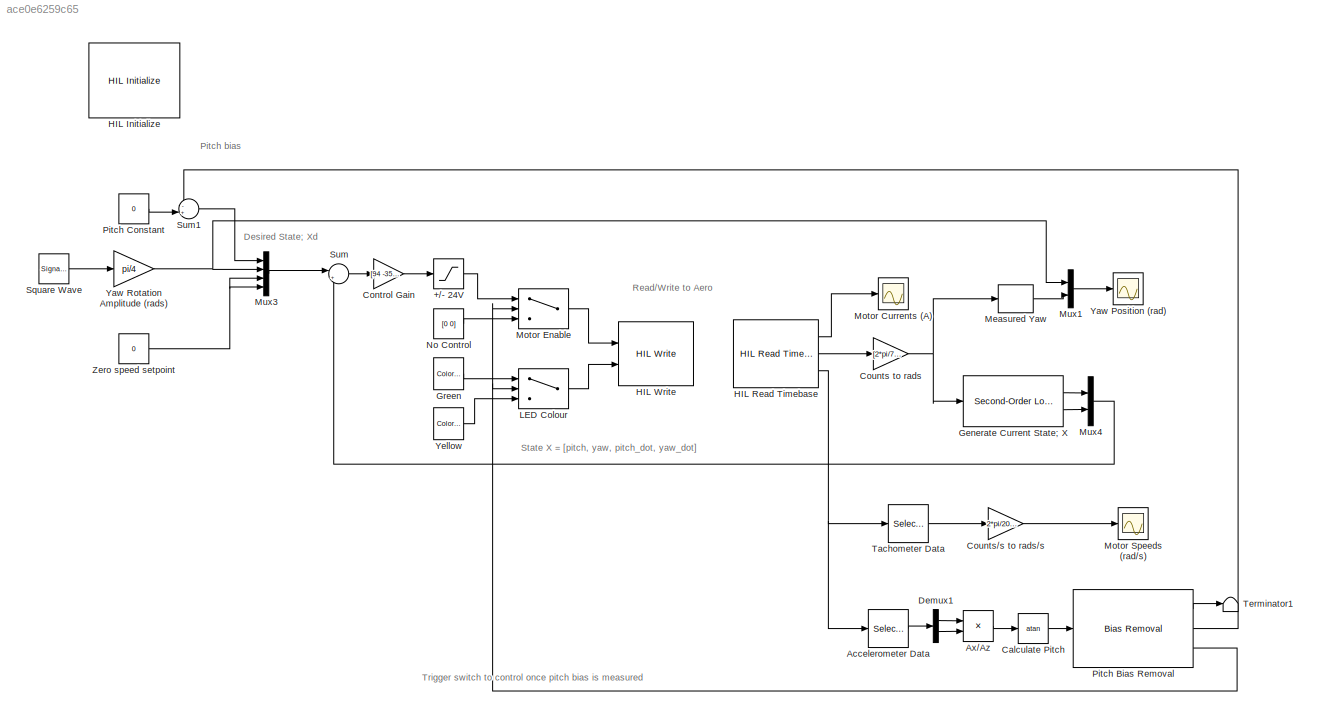
MODEL slx_ace0e6259c65
KIND model
CONFIG AbsTol = auto
CONFIG EnableMultiTasking = off
CONFIG FixedStep = 0.002
CONFIG MaxStep = auto
CONFIG MinStep = auto
CONFIG RelTol = 1e-3
CONFIG SampleTimeConstraint = Unconstrained
CONFIG SolverName = ode1
CONFIG StartTime = 0.0
CONFIG StopTime = inf
BLOCK [Saturate] +//- 24V
  LowerLimit = -24
  UpperLimit = 24
BLOCK [Selector] Accelerometer Data
  IndexOptions = Index vector (dialog)
  Indices = [1 2]
  InputPortWidth = 4
  OutputSizes = 1
  Ports = [1, 1]
BLOCK [Product] Ax//Az
  Inputs = */
  Ports = [2, 1]
BLOCK [Trigonometry] Calculate Pitch
  Operator = atan
  Ports = [1, 1]
BLOCK [Gain] Control Gain
  Gain = [94 -35 75 -25; 40 80 30 55]
  Multiplication = Matrix(K*u)
BLOCK [Gain] Counts to rads
  Gain = [2*pi/720/4 2*pi/1024/4]
BLOCK [Gain] Counts//s to rads//s
  Gain = 2*pi/2048
BLOCK [Demux] Demux1
  Outputs = 2
  Ports = [1, 2]
BLOCK [Reference] Generate Current State; X  REF=quarc_library/Continuous/Second-Order
Low-Pass Filter
  Ports = [1, 2]
  SourceBlock = quarc_library/Continuous/Second-Order\nLow-Pass Filter
  SourceProductName = QUARC Targets
  SourceType = Second-Order Low-Pass Filter
BLOCK [Reference] Green  REF=quarc_library/Sources/Signals/Color Constant
  Ports = [0, 1]
  SourceBlock = quarc_library/Sources/Signals/Color Constant
  SourceProductName = QUARC Targets
  SourceType = Color Constant
BLOCK [Reference] HIL Initialize  REF=quarc_library/Data Acquisition/Generic/Configuration/HIL Initialize
  AttributesFormatString = %<object_name> (%<board_type>-%<board_number>)
  Ports = []
  Priority = -99
  SourceBlock = quarc_library/Data Acquisition/Generic/Configuration/HIL Initialize
  SourceProductName = QUARC Targets
  SourceType = HIL Initialize
  UserDataPersistent = on
BLOCK [Reference] HIL Read Timebase  REF=quarc_library/Data Acquisition/Generic/Timebases/HIL Read
Timebase
  AttributesFormatString = (%<object_name>)
  Ports = [0, 3]
  SourceBlock = quarc_library/Data Acquisition/Generic/Timebases/HIL Read\nTimebase
  SourceProductName = QUARC Targets
  SourceType = HIL Read Timebase
  UserDataPersistent = on
BLOCK [Reference] HIL Write  REF=quarc_library/Data Acquisition/Generic/Immediate I//O/HIL Write
  AttributesFormatString = (%<object_name>)
  Ports = [2]
  SourceBlock = quarc_library/Data Acquisition/Generic/Immediate I//O/HIL Write
  SourceProductName = QUARC Targets
  SourceType = HIL Write
  UserDataPersistent = on
BLOCK [Switch] LED Colour
  Criteria = u2 > Threshold
  InputSameDT = off
  SaturateOnIntegerOverflow = off
BLOCK [Selector] Measured Yaw
  IndexOptions = Index vector (dialog)
  Indices = [2]
  InputPortWidth = 2
  OutputSizes = 1
  Ports = [1, 1]
BLOCK [Scope] Motor Currents (A)
  Floating = off
  NumInputPorts = 1
  Ports = [1]
  ScopeSpecificationString = Simulink.scopes.TimeScopeBlockCfg('CurrentConfiguration', extmgr.ConfigurationSet(extmgr.Configuration('Core','General UI',true),extmgr.Configuration('Core','Source UI',true),extmgr.Configuration('Sources','WiredSimulink',true,'DataLoggingMaxPoints','10000','DataLoggingSaveFormat','Array','DataLoggingDecimation','1','DataLoggingVariableName','ScopeData1'),extmgr.Configuration('Visuals','Time Domai...<+1673ch>
BLOCK [Switch] Motor Enable
  Criteria = u2 > Threshold
  InputSameDT = off
  SaturateOnIntegerOverflow = off
BLOCK [Scope] Motor Speeds (rad//s)
  Floating = off
  NumInputPorts = 1
  Ports = [1]
  ScopeSpecificationString = Simulink.scopes.TimeScopeBlockCfg('CurrentConfiguration', extmgr.ConfigurationSet(extmgr.Configuration('Core','General UI',true),extmgr.Configuration('Core','Source UI',true),extmgr.Configuration('Sources','WiredSimulink',true,'DataLoggingVariableName','ScopeData2','DataLoggingMaxPoints','10000','DataLoggingSaveFormat','Array','DataLoggingDecimation','1'),extmgr.Configuration('Visuals','Time Domai...<+1688ch>
BLOCK [Mux] Mux1
  DisplayOption = bar
  Inputs = 2
  Ports = [2, 1]
BLOCK [Mux] Mux3
  DisplayOption = bar
  Ports = [4, 1]
BLOCK [Mux] Mux4
  DisplayOption = bar
  Inputs = 2
  Ports = [2, 1]
BLOCK [Constant] No Control
  Value = [0 0]
BLOCK [Reference] Pitch Bias Removal  REF=quarc_library/Discrete/Bias Removal
  Ports = [1, 3]
  SourceBlock = quarc_library/Discrete/Bias Removal
  SourceProductName = QUARC Targets
  SourceType = Bias Removal
BLOCK [Constant] Pitch Constant
  Value = 0
BLOCK [SignalGenerator] Square Wave 
  Frequency = 0.05
  Ports = [0, 1]
  WaveForm = square
BLOCK [Sum] Sum
  Inputs = |+-
  Ports = [2, 1]
BLOCK [Sum] Sum1
  Inputs = -+|
  Ports = [2, 1]
BLOCK [Selector] Tachometer Data
  IndexOptions = Index vector (dialog)
  Indices = [3 4]
  InputPortWidth = 4
  OutputSizes = 1
  Ports = [1, 1]
BLOCK [Terminator] Terminator1
BLOCK [Scope] Yaw Position (rad)
  Floating = off
  NumInputPorts = 1
  Ports = [1]
  ScopeSpecificationString = Simulink.scopes.TimeScopeBlockCfg('CurrentConfiguration', extmgr.ConfigurationSet(extmgr.Configuration('Core','General UI',true),extmgr.Configuration('Core','Source UI',true),extmgr.Configuration('Sources','WiredSimulink',true,'DataLoggingMaxPoints','10000','DataLoggingSaveFormat','Array','DataLoggingDecimation','1'),extmgr.Configuration('Visuals','Time Domain',true,'SerializedDisplays',{struct('M...<+1597ch>
BLOCK [Gain] Yaw Rotation Amplitude (rads)
  Gain = pi/4
BLOCK [Reference] Yellow  REF=quarc_library/Sources/Signals/Color Constant
  Ports = [0, 1]
  SourceBlock = quarc_library/Sources/Signals/Color Constant
  SourceProductName = QUARC Targets
  SourceType = Color Constant
BLOCK [Constant] Zero speed setpoint
  Value = 0
ANNOTATION (root): Desired State; Xd
ANNOTATION (root): Pitch bias
ANNOTATION (root): Read/Write to Aero
ANNOTATION (root): State X = [pitch, yaw, pitch_dot, yaw_dot]
ANNOTATION (root): Trigger switch to control once pitch bias is measured
LINE +//- 24V:1 -> Motor Enable:1
LINE Accelerometer Data:1 -> Demux1:1
LINE Ax//Az:1 -> Calculate Pitch:1
LINE Calculate Pitch:1 -> Pitch Bias Removal:1
LINE Control Gain:1 -> +//- 24V:1
NET Counts to rads:1 -> Generate Current State; X:1, Measured Yaw:1
LINE Counts//s to rads//s:1 -> Motor Speeds (rad//s):1
LINE Demux1:1 -> Ax//Az:1
LINE Demux1:2 -> Ax//Az:2
LINE Generate Current State; X:1 -> Mux4:1
LINE Generate Current State; X:2 -> Mux4:2
LINE Green:1 -> LED Colour:1
LINE HIL Read Timebase:1 -> Motor Currents (A):1
LINE HIL Read Timebase:2 -> Counts to rads:1
NET HIL Read Timebase:3 -> Accelerometer Data:1, Tachometer Data:1
LINE LED Colour:1 -> HIL Write:2
LINE Measured Yaw:1 -> Mux1:2
LINE Motor Enable:1 -> HIL Write:1
LINE Mux1:1 -> Yaw Position (rad):1
LINE Mux3:1 -> Sum:1
LINE Mux4:1 -> Sum:2
LINE No Control:1 -> Motor Enable:3
LINE Pitch Bias Removal:1 -> Terminator1:1
LINE Pitch Bias Removal:2 -> Sum1:1
NET Pitch Bias Removal:3 -> LED Colour:2, Motor Enable:2
LINE Pitch Constant:1 -> Sum1:2
LINE Square Wave :1 -> Yaw Rotation Amplitude (rads):1
LINE Sum1:1 -> Mux3:1
LINE Sum:1 -> Control Gain:1
LINE Tachometer Data:1 -> Counts//s to rads//s:1
NET Yaw Rotation Amplitude (rads):1 -> Mux1:1, Mux3:2
LINE Yellow:1 -> LED Colour:3
NET Zero speed setpoint:1 -> Mux3:3, Mux3:4
note: NET lines group one-source signal fan-out (src -> all destinations, sorted); 1:1 wires keep LINE
